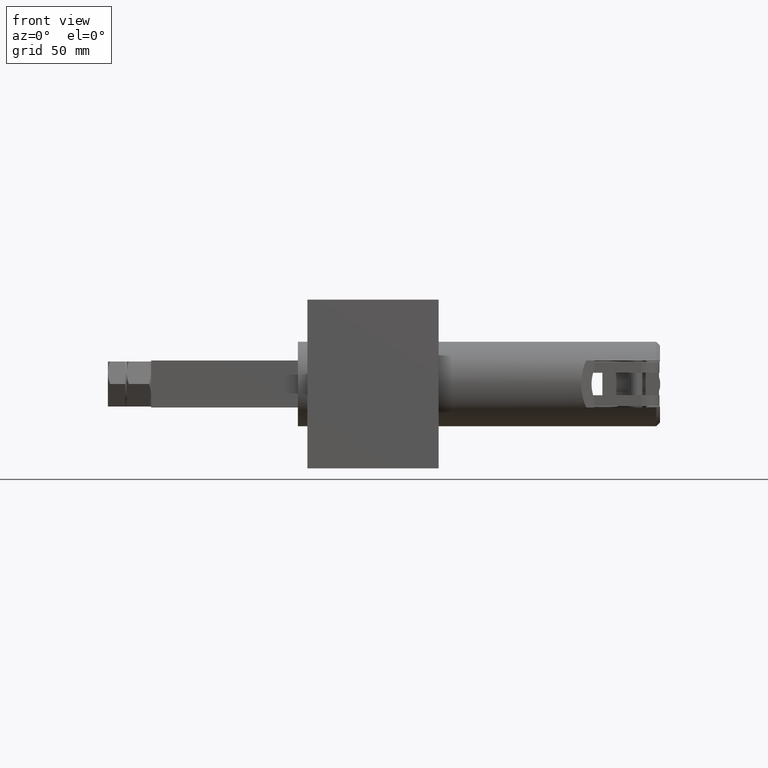
[diagram: clean part render]
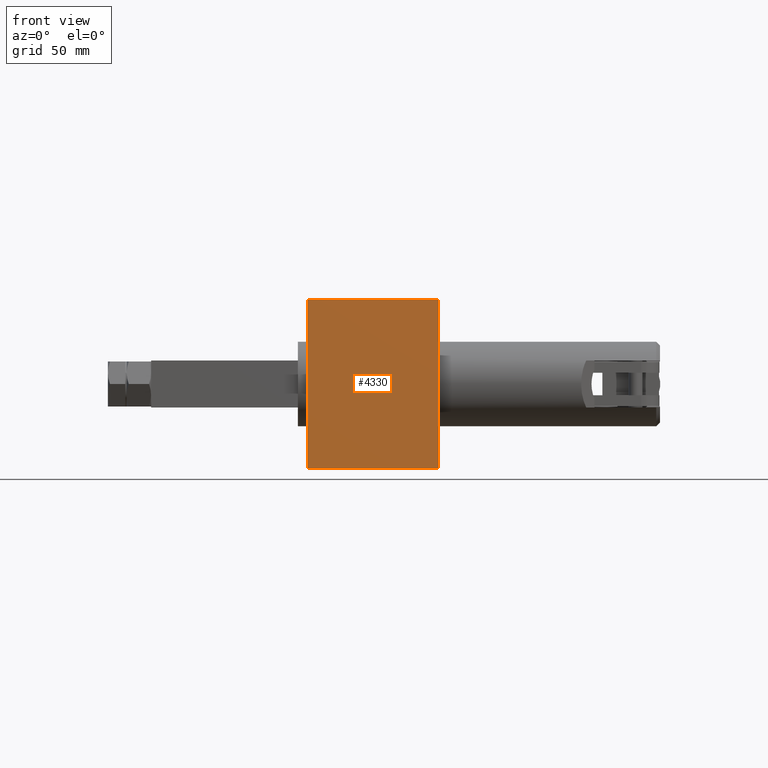
[diagram: same view with one face highlighted and labeled with its STEP entity id]
A machine part, front view. The second image highlights one B-rep face of the part: STEP entity #4330.
In plain terms, the highlighted planar face has unit normal (0, 1, 0).
Its self-contained STEP definition (entity closure, byte-faithful):
#26 = LINE ( 'NONE', #5282, #5473 ) ;
#445 = CARTESIAN_POINT ( 'NONE',  ( -34.99999999999999300, 0.0000000000000000000, 45.00000000000000700 ) ) ;
#590 = CARTESIAN_POINT ( 'NONE',  ( 35.00000000000000700, 0.0000000000000000000, 44.99999999999998600 ) ) ;
#703 = EDGE_LOOP ( 'NONE', ( #4630, #3675, #3439, #3848 ) ) ;
#755 = PLANE ( 'NONE',  #847 ) ;
#819 = VERTEX_POINT ( 'NONE', #2831 ) ;
#847 = AXIS2_PLACEMENT_3D ( 'NONE', #4597, #1184, #4211 ) ;
#961 = VERTEX_POINT ( 'NONE', #2576 ) ;
#964 = CARTESIAN_POINT ( 'NONE',  ( 34.99999999999998600, 0.0000000000000000000, -45.00000000000001400 ) ) ;
#1184 = DIRECTION ( 'NONE',  ( 0.0000000000000000000, 1.000000000000000000, 0.0000000000000000000 ) ) ;
#1254 = CARTESIAN_POINT ( 'NONE',  ( 35.00000000000000700, 0.0000000000000000000, 44.99999999999998600 ) ) ;
#1441 = DIRECTION ( 'NONE',  ( -2.766582776912872400E-016, 0.0000000000000000000, -1.000000000000000000 ) ) ;
#1719 = EDGE_CURVE ( 'NONE', #2601, #819, #4121, .T. ) ;
#1832 = VECTOR ( 'NONE', #1441, 1000.000000000000000 ) ;
#2442 = VECTOR ( 'NONE', #2577, 1000.000000000000000 ) ;
#2554 = EDGE_CURVE ( 'NONE', #961, #3956, #26, .T. ) ;
#2576 = CARTESIAN_POINT ( 'NONE',  ( -35.00000000000002100, 0.0000000000000000000, -44.99999999999996400 ) ) ;
#2577 = DIRECTION ( 'NONE',  ( 1.000000000000000000, -0.0000000000000000000, -2.215876911523409800E-016 ) ) ;
#2601 = VERTEX_POINT ( 'NONE', #590 ) ;
#2701 = DIRECTION ( 'NONE',  ( -1.000000000000000000, 0.0000000000000000000, 6.180959142327539500E-016 ) ) ;
#2831 = CARTESIAN_POINT ( 'NONE',  ( 34.99999999999998600, 0.0000000000000000000, -45.00000000000001400 ) ) ;
#2954 = EDGE_CURVE ( 'NONE', #3956, #2601, #3605, .T. ) ;
#2979 = VECTOR ( 'NONE', #2701, 1000.000000000000000 ) ;
#3158 = DIRECTION ( 'NONE',  ( 2.766582776912873400E-016, 0.0000000000000000000, 1.000000000000000000 ) ) ;
#3439 = ORIENTED_EDGE ( 'NONE', *, *, #2954, .F. ) ;
#3605 = LINE ( 'NONE', #1254, #2442 ) ;
#3641 = EDGE_CURVE ( 'NONE', #819, #961, #5247, .T. ) ;
#3675 = ORIENTED_EDGE ( 'NONE', *, *, #1719, .F. ) ;
#3848 = ORIENTED_EDGE ( 'NONE', *, *, #2554, .F. ) ;
#3956 = VERTEX_POINT ( 'NONE', #445 ) ;
#4024 = CARTESIAN_POINT ( 'NONE',  ( 34.99999999999998600, 0.0000000000000000000, -45.00000000000001400 ) ) ;
#4121 = LINE ( 'NONE', #4024, #1832 ) ;
#4211 = DIRECTION ( 'NONE',  ( -1.000000000000000000, 0.0000000000000000000, 1.224606353822377300E-016 ) ) ;
#4330 = ADVANCED_FACE ( 'NONE', ( #4500 ), #755, .F. ) ;
#4500 = FACE_OUTER_BOUND ( 'NONE', #703, .T. ) ;
#4597 = CARTESIAN_POINT ( 'NONE',  ( -35.00000000000002100, 0.0000000000000000000, -44.99999999999996400 ) ) ;
#4630 = ORIENTED_EDGE ( 'NONE', *, *, #3641, .F. ) ;
#5247 = LINE ( 'NONE', #964, #2979 ) ;
#5282 = CARTESIAN_POINT ( 'NONE',  ( -35.00000000000002100, 0.0000000000000000000, -44.99999999999996400 ) ) ;
#5473 = VECTOR ( 'NONE', #3158, 1000.000000000000000 ) ;